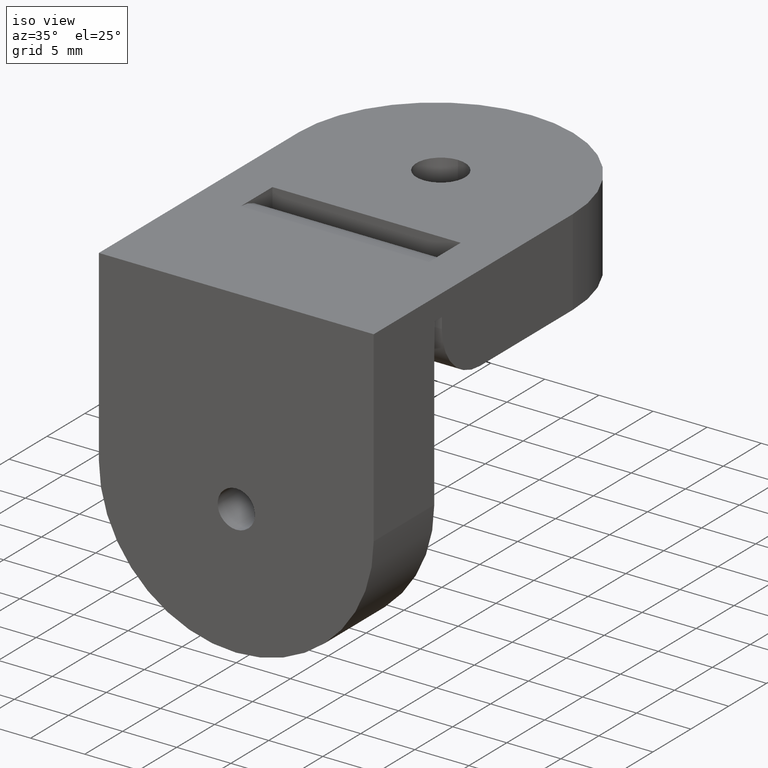
[diagram: clean part render]
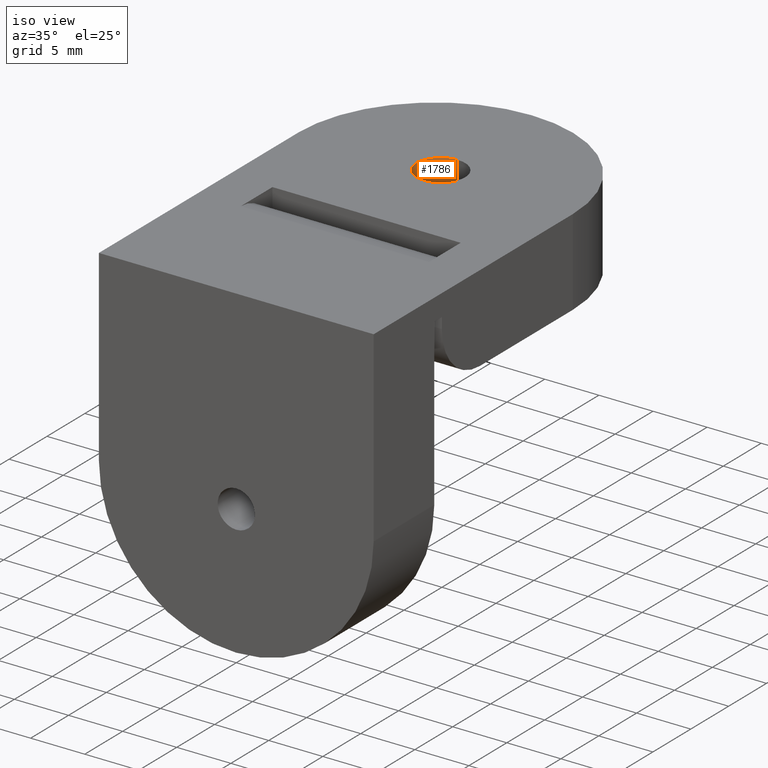
[diagram: same view with one face highlighted and labeled with its STEP entity id]
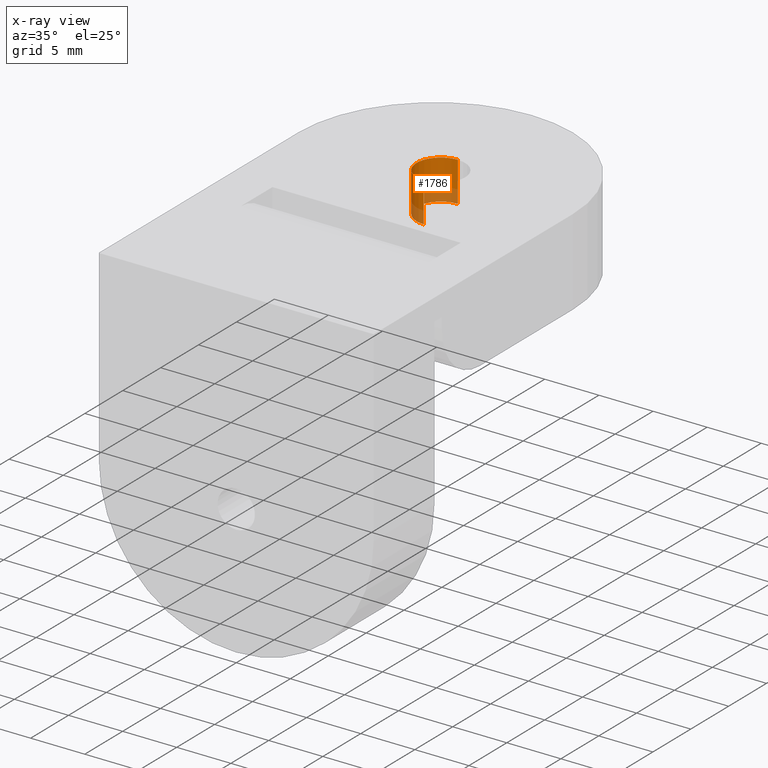
[diagram: x-ray of the same camera — body ghosted, the highlighted face saturated]
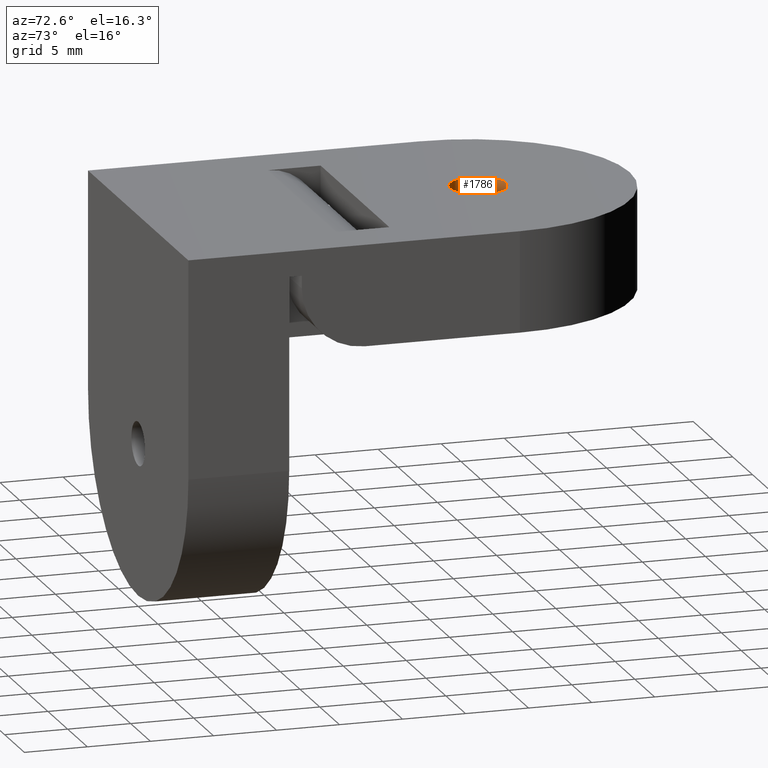
[diagram: same view with one face highlighted and labeled with its STEP entity id]
A machine part, iso view. The second image highlights one B-rep face of the part: STEP entity #1786.
The next image is the same camera in x-ray: the body ghosted, the highlighted face saturated — about 30% of this face is hidden behind the body in this view.
A second angle (auxiliary view) of the same face is appended — the face is thin or edge-on in the first view.
In plain terms, the highlighted cylindrical surface (edge-blend (fillet) strip) has radius 2.2479 mm, axis along (-0, -0, -1).
Its self-contained STEP definition (entity closure, byte-faithful):
#55 = AXIS2_PLACEMENT_3D ( 'NONE', #2795, #1374, #3040 ) ;
#133 = DIRECTION ( 'NONE',  ( -1.734720147809981100E-016, -1.206061786844441000E-031, -1.000000000000000000 ) ) ;
#429 = EDGE_CURVE ( 'NONE', #1087, #1823, #1779, .T. ) ;
#458 = CARTESIAN_POINT ( 'NONE',  ( 1.429540244518943400E-014, 24.75209999999999500, -3.681999999999998600 ) ) ;
#517 = LINE ( 'NONE', #2807, #2320 ) ;
#641 = ORIENTED_EDGE ( 'NONE', *, *, #1906, .T. ) ;
#773 = FACE_OUTER_BOUND ( 'NONE', #2397, .T. ) ;
#808 = CIRCLE ( 'NONE', #2279, 2.247899999999996900 ) ;
#852 = DIRECTION ( 'NONE',  ( -1.734720147809981100E-016, -1.206061786844441000E-031, -1.000000000000000000 ) ) ;
#887 = DIRECTION ( 'NONE',  ( -1.734720147809981100E-016, -1.206061786844441000E-031, -1.000000000000000000 ) ) ;
#1087 = VERTEX_POINT ( 'NONE', #458 ) ;
#1089 = CYLINDRICAL_SURFACE ( 'NONE', #2891, 2.247899999999996900 ) ;
#1188 = ORIENTED_EDGE ( 'NONE', *, *, #1794, .F. ) ;
#1339 = CARTESIAN_POINT ( 'NONE',  ( 1.373312463732179600E-014, 29.24789999999999400, -7.999999999999998200 ) ) ;
#1374 = DIRECTION ( 'NONE',  ( -1.734720147809981100E-016, -1.206061786844441000E-031, -1.000000000000000000 ) ) ;
#1388 = ORIENTED_EDGE ( 'NONE', *, *, #2919, .F. ) ;
#1408 = DIRECTION ( 'NONE',  ( -1.734720147809981100E-016, -1.206061786844441000E-031, -1.000000000000000000 ) ) ;
#1430 = VERTEX_POINT ( 'NONE', #1838 ) ;
#1552 = CARTESIAN_POINT ( 'NONE',  ( 1.473018841299535200E-014, 26.99999999999999600, 1.734723475976807100E-015 ) ) ;
#1738 = LINE ( 'NONE', #1339, #2991 ) ;
#1779 = CIRCLE ( 'NONE', #55, 2.247900000000000500 ) ;
#1786 = ADVANCED_FACE ( 'NONE', ( #773 ), #1089, .F. ) ;
#1794 = EDGE_CURVE ( 'NONE', #1430, #1823, #1738, .T. ) ;
#1795 = DIRECTION ( 'NONE',  ( 1.738121547108120400E-016, 1.000000000000000000, 1.713537029571812400E-031 ) ) ;
#1809 = CARTESIAN_POINT ( 'NONE',  ( 1.334241229474736400E-014, 26.99999999999999600, -7.999999999999998200 ) ) ;
#1823 = VERTEX_POINT ( 'NONE', #2121 ) ;
#1838 = CARTESIAN_POINT ( 'NONE',  ( 1.512090075556978700E-014, 29.24789999999999400, 1.734723475976807500E-015 ) ) ;
#1906 = EDGE_CURVE ( 'NONE', #2871, #1087, #517, .T. ) ;
#2001 = CARTESIAN_POINT ( 'NONE',  ( 1.429540244518943400E-014, 24.75209999999999900, 1.734723475976807500E-015 ) ) ;
#2121 = CARTESIAN_POINT ( 'NONE',  ( 1.448217679714614900E-014, 29.24789999999999800, -3.681999999999998600 ) ) ;
#2279 = AXIS2_PLACEMENT_3D ( 'NONE', #1552, #133, #1795 ) ;
#2320 = VECTOR ( 'NONE', #852, 1000.000000000000000 ) ;
#2397 = EDGE_LOOP ( 'NONE', ( #1388, #641, #2447, #1188 ) ) ;
#2447 = ORIENTED_EDGE ( 'NONE', *, *, #429, .T. ) ;
#2795 = CARTESIAN_POINT ( 'NONE',  ( 1.409146445457171500E-014, 26.99999999999999600, -3.681999999999998600 ) ) ;
#2807 = CARTESIAN_POINT ( 'NONE',  ( 1.322698830615326500E-014, 24.75209999999999900, -7.999999999999998200 ) ) ;
#2871 = VERTEX_POINT ( 'NONE', #2001 ) ;
#2891 = AXIS2_PLACEMENT_3D ( 'NONE', #1809, #1408, #3014 ) ;
#2919 = EDGE_CURVE ( 'NONE', #2871, #1430, #808, .T. ) ;
#2991 = VECTOR ( 'NONE', #887, 1000.000000000000000 ) ;
#3014 = DIRECTION ( 'NONE',  ( 1.738121547108113200E-016, 1.000000000000000000, 0.0000000000000000000 ) ) ;
#3040 = DIRECTION ( 'NONE',  ( 1.738121547108117700E-016, 1.000000000000000000, 0.0000000000000000000 ) ) ;